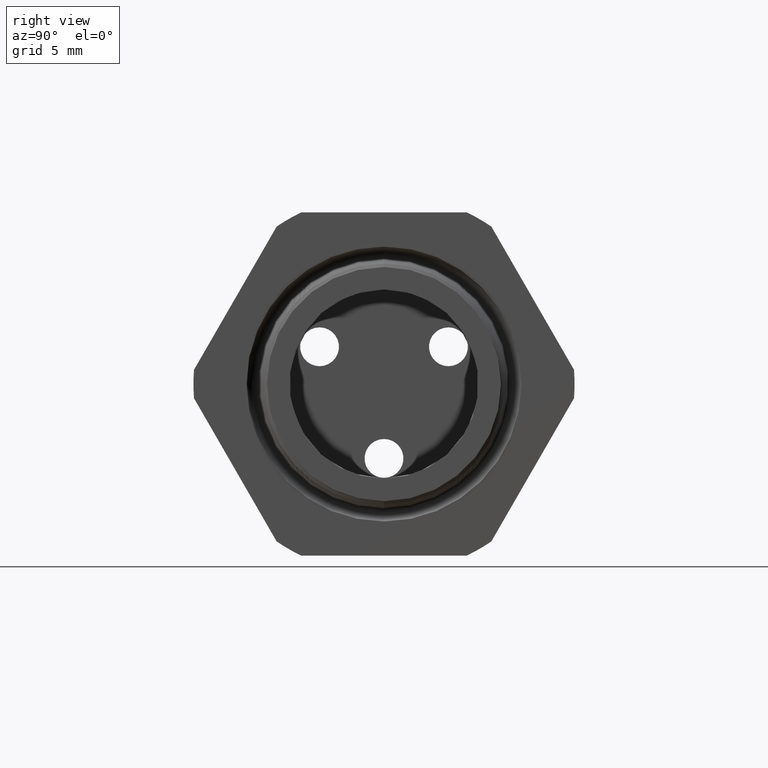
[diagram: clean part render]
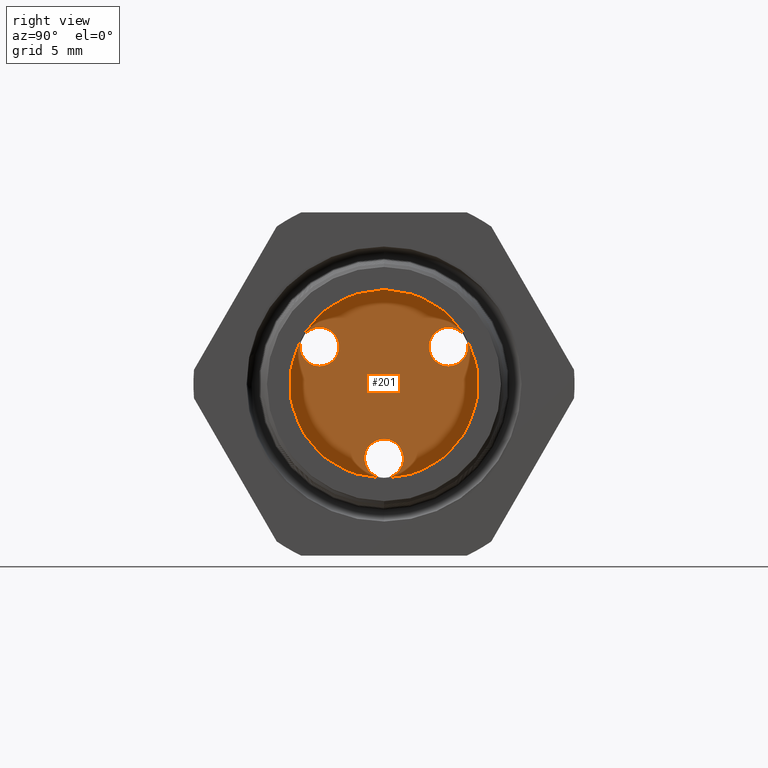
[diagram: same view with one face highlighted and labeled with its STEP entity id]
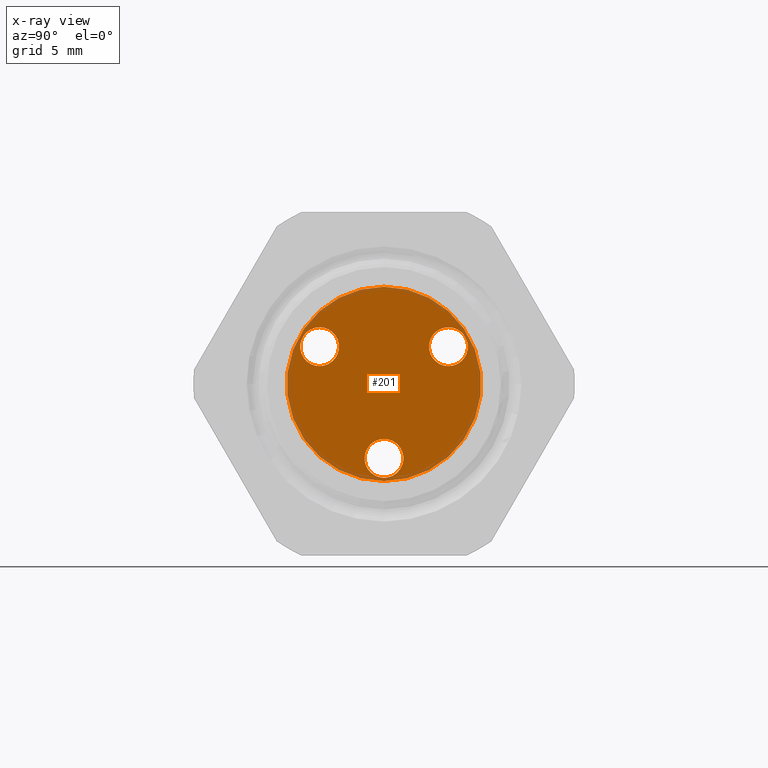
[diagram: x-ray of the same camera — body ghosted, the highlighted face saturated]
A machine part, right view. The second image highlights one B-rep face of the part: STEP entity #201.
The next image is the same camera in x-ray: the body ghosted, the highlighted face saturated — about 7% of this face is hidden behind the body in this view.
In plain terms, the highlighted planar face has unit normal (-1, 0, 0).
Its self-contained STEP definition (entity closure, byte-faithful):
#201 = ADVANCED_FACE ( 'NONE', ( #2001, #2000, #1999, #1998 ), #1997, .F. ) ;
#202 = EDGE_LOOP ( 'NONE', ( #203, #241 ) ) ;
#203 = ORIENTED_EDGE ( 'NONE', *, *, #240, .T. ) ;
#224 = EDGE_CURVE ( 'NONE', #251, #250, #2021, .T. ) ;
#226 = ORIENTED_EDGE ( 'NONE', *, *, #1298, .T. ) ;
#227 = ORIENTED_EDGE ( 'NONE', *, *, #228, .T. ) ;
#228 = EDGE_CURVE ( 'NONE', #1310, #1309, #2015, .T. ) ;
#229 = ORIENTED_EDGE ( 'NONE', *, *, #1308, .T. ) ;
#230 = EDGE_LOOP ( 'NONE', ( #231, #262 ) ) ;
#231 = ORIENTED_EDGE ( 'NONE', *, *, #249, .F. ) ;
#240 = EDGE_CURVE ( 'NONE', #1319, #1242, #2064, .T. ) ;
#241 = ORIENTED_EDGE ( 'NONE', *, *, #1245, .T. ) ;
#242 = EDGE_LOOP ( 'NONE', ( #243, #226 ) ) ;
#243 = ORIENTED_EDGE ( 'NONE', *, *, #244, .T. ) ;
#244 = EDGE_CURVE ( 'NONE', #1300, #1299, #2059, .T. ) ;
#245 = EDGE_LOOP ( 'NONE', ( #227, #229 ) ) ;
#249 = EDGE_CURVE ( 'NONE', #250, #251, #2049, .T. ) ;
#250 = VERTEX_POINT ( 'NONE', #2044 ) ;
#251 = VERTEX_POINT ( 'NONE', #2043 ) ;
#262 = ORIENTED_EDGE ( 'NONE', *, *, #224, .F. ) ;
#1242 = VERTEX_POINT ( 'NONE', #3712 ) ;
#1245 = EDGE_CURVE ( 'NONE', #1242, #1319, #3710, .T. ) ;
#1298 = EDGE_CURVE ( 'NONE', #1299, #1300, #3805, .T. ) ;
#1299 = VERTEX_POINT ( 'NONE', #3800 ) ;
#1300 = VERTEX_POINT ( 'NONE', #3799 ) ;
#1308 = EDGE_CURVE ( 'NONE', #1309, #1310, #3791, .T. ) ;
#1309 = VERTEX_POINT ( 'NONE', #3843 ) ;
#1310 = VERTEX_POINT ( 'NONE', #3842 ) ;
#1319 = VERTEX_POINT ( 'NONE', #3826 ) ;
#1993 = DIRECTION ( 'NONE',  ( 0.0000000000000000000, 0.0000000000000000000, 1.000000000000000000 ) ) ;
#1994 = DIRECTION ( 'NONE',  ( -1.000000000000000000, 0.0000000000000000000, 0.0000000000000000000 ) ) ;
#1995 = CARTESIAN_POINT ( 'NONE',  ( -1.060000000000000100, 0.0000000000000000000, 0.0000000000000000000 ) ) ;
#1996 = AXIS2_PLACEMENT_3D ( 'NONE', #1995, #1994, #1993 ) ;
#1997 = PLANE ( 'NONE',  #1996 ) ;
#1998 = FACE_OUTER_BOUND ( 'NONE', #230, .T. ) ;
#1999 = FACE_BOUND ( 'NONE', #245, .T. ) ;
#2000 = FACE_BOUND ( 'NONE', #242, .T. ) ;
#2001 = FACE_BOUND ( 'NONE', #202, .T. ) ;
#2011 = DIRECTION ( 'NONE',  ( 0.0000000000000000000, 0.0000000000000000000, 1.000000000000000000 ) ) ;
#2012 = DIRECTION ( 'NONE',  ( -1.000000000000000000, 0.0000000000000000000, 0.0000000000000000000 ) ) ;
#2013 = CARTESIAN_POINT ( 'NONE',  ( -1.060000000000000300, 0.0000000000000000000, -0.2297599999999999900 ) ) ;
#2014 = AXIS2_PLACEMENT_3D ( 'NONE', #2013, #2012, #2011 ) ;
#2015 = CIRCLE ( 'NONE', #2014, 0.06000000000000001200 ) ;
#2018 = DIRECTION ( 'NONE',  ( 0.0000000000000000000, 0.0000000000000000000, 1.000000000000000000 ) ) ;
#2019 = DIRECTION ( 'NONE',  ( -1.000000000000000000, 0.0000000000000000000, 0.0000000000000000000 ) ) ;
#2020 = AXIS2_PLACEMENT_3D ( 'NONE', #2027, #2019, #2018 ) ;
#2021 = CIRCLE ( 'NONE', #2020, 0.2999999999999999900 ) ;
#2027 = CARTESIAN_POINT ( 'NONE',  ( -1.060000000000000100, 0.0000000000000000000, 0.0000000000000000000 ) ) ;
#2043 = CARTESIAN_POINT ( 'NONE',  ( -1.060000000000000100, 3.673940397442058900E-017, -0.2999999999999999900 ) ) ;
#2044 = CARTESIAN_POINT ( 'NONE',  ( -1.060000000000000100, 0.0000000000000000000, 0.2999999999999999900 ) ) ;
#2045 = DIRECTION ( 'NONE',  ( 0.0000000000000000000, 0.0000000000000000000, 1.000000000000000000 ) ) ;
#2046 = DIRECTION ( 'NONE',  ( -1.000000000000000000, 0.0000000000000000000, 0.0000000000000000000 ) ) ;
#2047 = CARTESIAN_POINT ( 'NONE',  ( -1.060000000000000100, 0.0000000000000000000, 0.0000000000000000000 ) ) ;
#2048 = AXIS2_PLACEMENT_3D ( 'NONE', #2047, #2046, #2045 ) ;
#2049 = CIRCLE ( 'NONE', #2048, 0.2999999999999999900 ) ;
#2055 = DIRECTION ( 'NONE',  ( 0.0000000000000000000, 0.8660254037844362700, -0.5000000000000041100 ) ) ;
#2056 = DIRECTION ( 'NONE',  ( -1.000000000000000000, 0.0000000000000000000, 0.0000000000000000000 ) ) ;
#2057 = CARTESIAN_POINT ( 'NONE',  ( -1.060000000000000100, -0.1989779967735121300, 0.1148800000000009300 ) ) ;
#2058 = AXIS2_PLACEMENT_3D ( 'NONE', #2057, #2056, #2055 ) ;
#2059 = CIRCLE ( 'NONE', #2058, 0.06000000000000002600 ) ;
#2060 = DIRECTION ( 'NONE',  ( 0.0000000000000000000, -0.8660254037844432600, -0.4999999999999919500 ) ) ;
#2061 = DIRECTION ( 'NONE',  ( -1.000000000000000000, 0.0000000000000000000, 0.0000000000000000000 ) ) ;
#2062 = CARTESIAN_POINT ( 'NONE',  ( -1.060000000000000100, 0.1989779967735136600, 0.1148799999999981500 ) ) ;
#2063 = AXIS2_PLACEMENT_3D ( 'NONE', #2062, #2061, #2060 ) ;
#2064 = CIRCLE ( 'NONE', #2063, 0.06000000000000001900 ) ;
#3706 = DIRECTION ( 'NONE',  ( 0.0000000000000000000, -0.8660254037844432600, -0.4999999999999919500 ) ) ;
#3707 = DIRECTION ( 'NONE',  ( -1.000000000000000000, 0.0000000000000000000, 0.0000000000000000000 ) ) ;
#3708 = CARTESIAN_POINT ( 'NONE',  ( -1.060000000000000100, 0.1989779967735136600, 0.1148799999999981500 ) ) ;
#3709 = AXIS2_PLACEMENT_3D ( 'NONE', #3708, #3707, #3706 ) ;
#3710 = CIRCLE ( 'NONE', #3709, 0.06000000000000001900 ) ;
#3712 = CARTESIAN_POINT ( 'NONE',  ( -1.060000000000000100, 0.1989779967735136600, 0.05487999999999812500 ) ) ;
#3783 = DIRECTION ( 'NONE',  ( 0.0000000000000000000, 0.0000000000000000000, 1.000000000000000000 ) ) ;
#3784 = DIRECTION ( 'NONE',  ( -1.000000000000000000, 0.0000000000000000000, 0.0000000000000000000 ) ) ;
#3785 = CARTESIAN_POINT ( 'NONE',  ( -1.060000000000000300, 0.0000000000000000000, -0.2297599999999999900 ) ) ;
#3786 = AXIS2_PLACEMENT_3D ( 'NONE', #3785, #3784, #3783 ) ;
#3791 = CIRCLE ( 'NONE', #3786, 0.06000000000000001200 ) ;
#3799 = CARTESIAN_POINT ( 'NONE',  ( -1.060000000000000100, -0.1989779967735121300, 0.1748800000000009500 ) ) ;
#3800 = CARTESIAN_POINT ( 'NONE',  ( -1.060000000000000100, -0.1989779967735121300, 0.05488000000000091400 ) ) ;
#3801 = DIRECTION ( 'NONE',  ( 0.0000000000000000000, 0.8660254037844362700, -0.5000000000000041100 ) ) ;
#3802 = DIRECTION ( 'NONE',  ( -1.000000000000000000, 0.0000000000000000000, 0.0000000000000000000 ) ) ;
#3803 = CARTESIAN_POINT ( 'NONE',  ( -1.060000000000000100, -0.1989779967735121300, 0.1148800000000009300 ) ) ;
#3804 = AXIS2_PLACEMENT_3D ( 'NONE', #3803, #3802, #3801 ) ;
#3805 = CIRCLE ( 'NONE', #3804, 0.06000000000000002600 ) ;
#3826 = CARTESIAN_POINT ( 'NONE',  ( -1.060000000000000100, 0.1989779967735136600, 0.1748799999999982000 ) ) ;
#3842 = CARTESIAN_POINT ( 'NONE',  ( -1.060000000000000300, 0.0000000000000000000, -0.1697599999999999700 ) ) ;
#3843 = CARTESIAN_POINT ( 'NONE',  ( -1.060000000000000300, 7.347880794884123000E-018, -0.2897600000000000200 ) ) ;